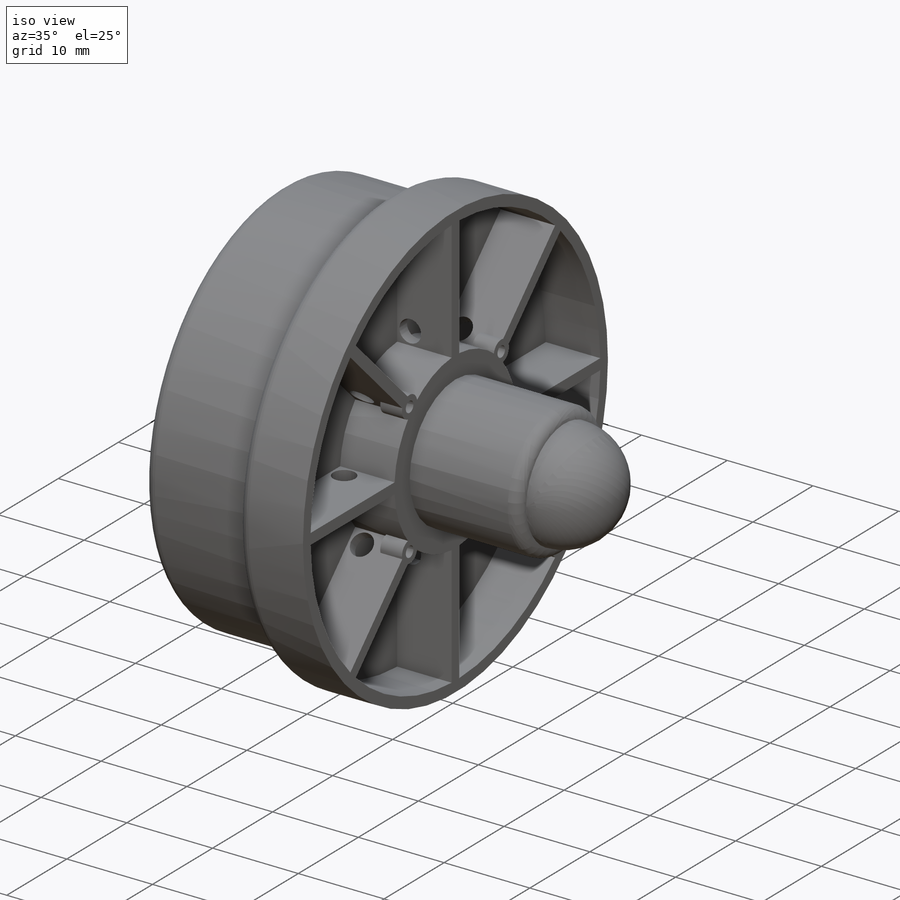
[diagram: iso view]
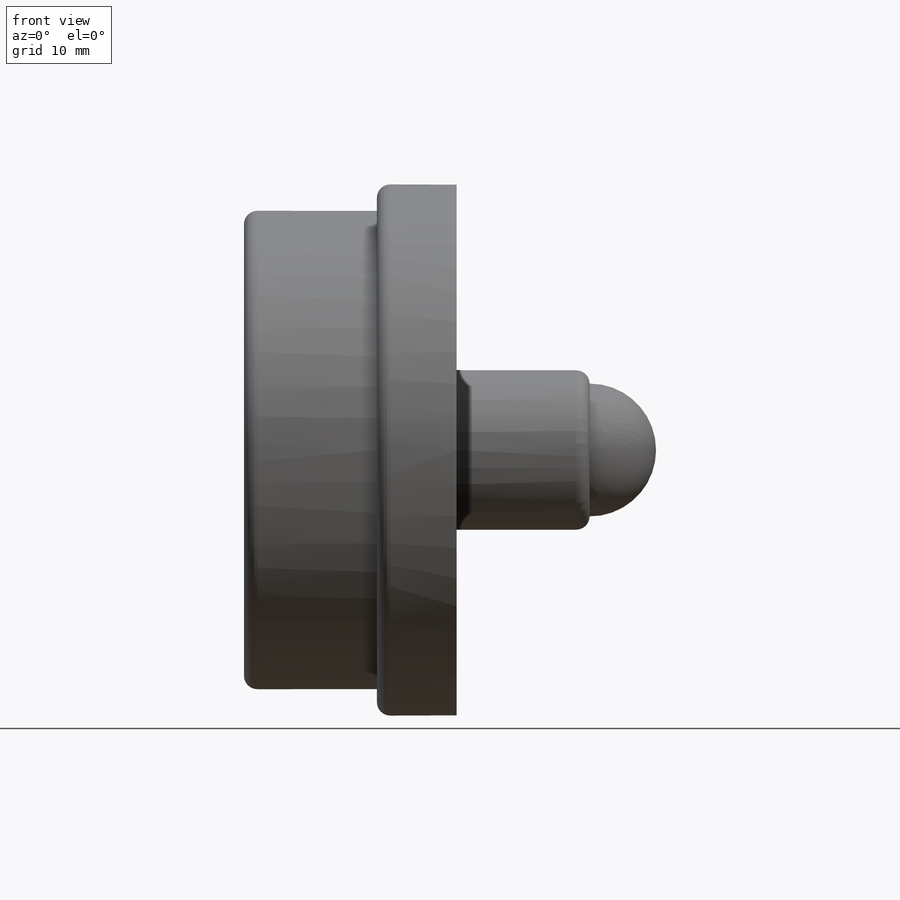
[diagram: front view]
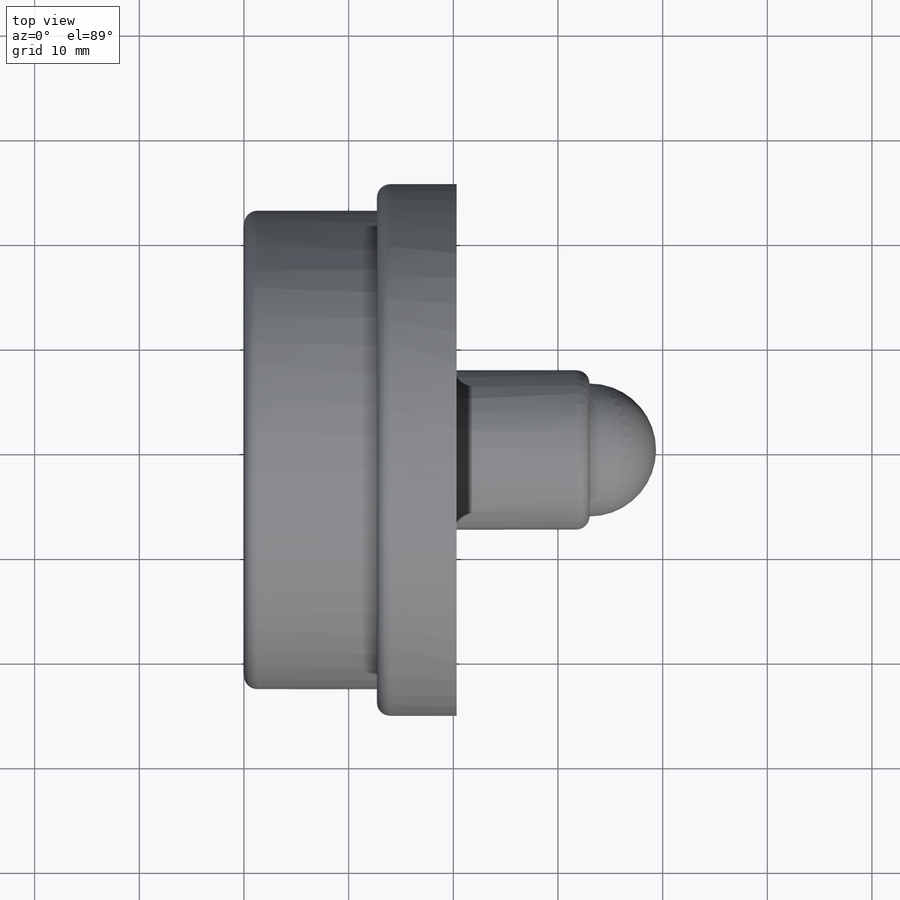
[diagram: top view]
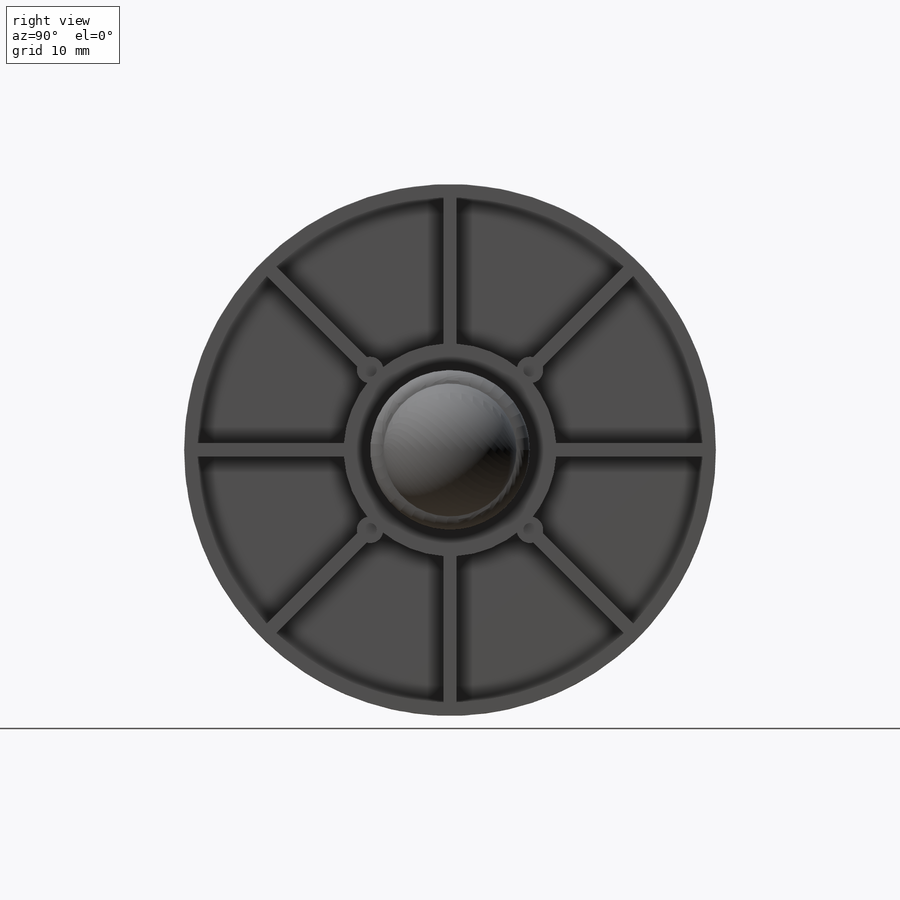
[diagram: right view]
SOLIDWORKS PART (.sldprt)
format: sldprt  version: not decoded by parser v0  size: 494,080 bytes
history: native  units: mm
features: sketch x10, extrude x7, fillet x4, material x1, cut_revolve x1, cut_extrude x1, pattern_circular x1 (+13 scaffold rows collapsed)
feature tree (38):
  scaffold x13  (default folders/planes/origin — collapsed)
  material  "Material <not specified>"
  sketch  "Sketch1"  dims[c1.D1=38.1mm c1.D2=45.72mm c2.D2=~3.222138mm]
  extrude  "Boss-Extrude1"  Depth=12.7mm
  sketch  "Sketch2"  dims[D1=50.8mm]
  extrude  "Boss-Extrude2"  Depth=1.27mm
  fillet  "Fillet1"  Radius=1.27mm
  sketch  "Sketch3"  dims[c1.D1=~47.893009mm c1.D2=20.32mm c2.D1=1.27mm]
  extrude  "Boss-Extrude3"  Depth=6.35mm
  sketch  "Sketch4"  dims[D1=15.24mm]
  extrude  "Boss-Extrude4"  Depth=12.7mm
  sketch  "Sketch5"  dims[D1=1.27mm D3=0.635mm D2=8.0]
  extrude  "Boss-Extrude8"  Depth=6.35mm
  sketch  "Sketch7"  dims[D1=2.54mm D2=1.524mm D3=1.524mm]
  cut_revolve  "Cut-Revolve1"  Angle=360deg
  sketch  "Sketch8"  dims[c1.D1=21.59mm c1.D2=2.54mm c1.D3=~7.633218mm c2.D3=45.0deg c2.D4=4.0]
  extrude  "Boss-Extrude9"  Depth=2.54mm
  sketch  "Sketch9"  dims[D1=1.27mm]
  cut_extrude  "Cut-Extrude2"  Depth=2.286mm
  pattern_circular  "CirPattern1"  Count=4 Angle=360deg
  fillet  "Fillet2"  Radius=1.27mm
  sketch  "Sketch10"
  extrude  "Boss-Extrude10"  Depth=6.35mm
  fillet  "Fillet3"  Radius=6.35mm
  sketch  "Sketch11"  dims[D1=21.59mm]
  fillet  "Fillet4"  Radius=1.27mm
decode coverage: 23 of 24 modeling features carry decoded parameters
note: ~ marks probable driven/reference dimensions
note: suppression state not decoded; provenance and decode notes live in map.json
